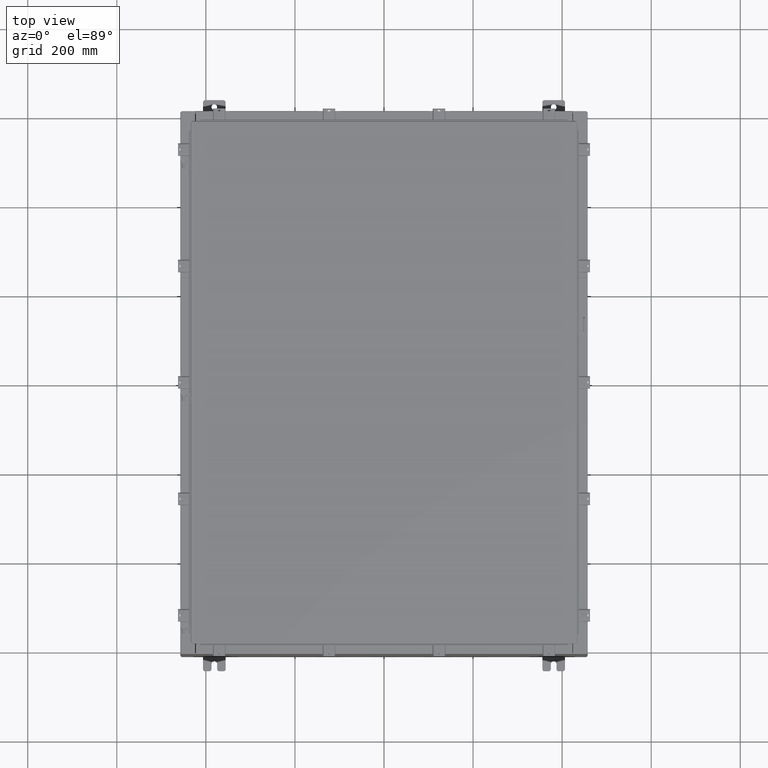
[diagram: clean part render]
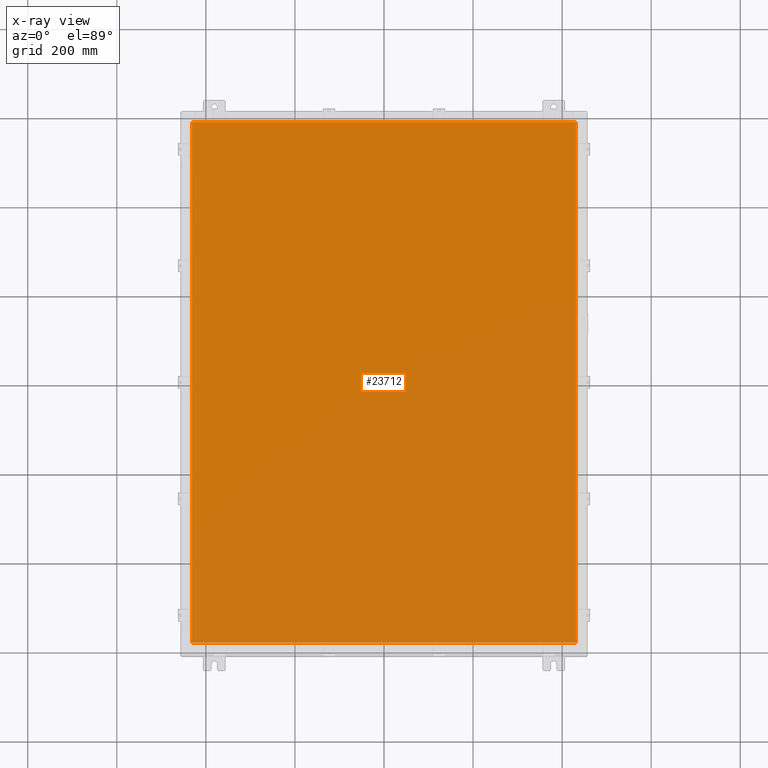
[diagram: x-ray — body ghosted, one internal face saturated and labeled with its STEP entity id]
A machine part, top view, then the same camera in x-ray: the body is ghosted and one INTERNAL B-rep face — a face not visible from any outside direction — is saturated and labeled: STEP entity #23712.
In plain terms, the highlighted planar face has unit normal (0, 0, -1).
Its self-contained STEP definition (entity closure, byte-faithful):
#779 = FACE_OUTER_BOUND ( 'NONE', #23626, .T. ) ;
#1055 = VERTEX_POINT ( 'NONE', #11537 ) ;
#1140 = VERTEX_POINT ( 'NONE', #10193 ) ;
#1449 = ORIENTED_EDGE ( 'NONE', *, *, #5586, .F. ) ;
#1733 = AXIS2_PLACEMENT_3D ( 'NONE', #4291, #17014, #4378 ) ;
#2490 = ORIENTED_EDGE ( 'NONE', *, *, #24665, .F. ) ;
#3013 = VERTEX_POINT ( 'NONE', #8058 ) ;
#3298 = DIRECTION ( 'NONE',  ( -1.000000000000000000, -0.0000000000000000000, -0.0000000000000000000 ) ) ;
#3897 = DIRECTION ( 'NONE',  ( 0.0000000000000000000, -1.000000000000000000, 0.0000000000000000000 ) ) ;
#4291 = CARTESIAN_POINT ( 'NONE',  ( 0.0000000000000000000, 0.0000000000000000000, -0.07470000000000015500 ) ) ;
#4378 = DIRECTION ( 'NONE',  ( -1.000000000000000000, 0.0000000000000000000, -0.0000000000000000000 ) ) ;
#5074 = VECTOR ( 'NONE', #21893, 39.37007874015748100 ) ;
#5586 = EDGE_CURVE ( 'NONE', #12292, #1055, #25271, .T. ) ;
#7373 = VECTOR ( 'NONE', #13850, 39.37007874015748100 ) ;
#8058 = CARTESIAN_POINT ( 'NONE',  ( 16.99030000000000100, -23.00630000000000000, -0.07470000000000015500 ) ) ;
#8979 = VECTOR ( 'NONE', #3897, 39.37007874015748100 ) ;
#10193 = CARTESIAN_POINT ( 'NONE',  ( -16.99029999999999800, -23.00629999999999600, -0.07470000000000015500 ) ) ;
#10698 = LINE ( 'NONE', #26007, #5074 ) ;
#11537 = CARTESIAN_POINT ( 'NONE',  ( -16.99029999999999800, 23.00629999999999600, -0.07470000000000015500 ) ) ;
#12292 = VERTEX_POINT ( 'NONE', #24200 ) ;
#13850 = DIRECTION ( 'NONE',  ( 1.000000000000000000, -0.0000000000000000000, -0.0000000000000000000 ) ) ;
#14327 = LINE ( 'NONE', #20155, #7373 ) ;
#14879 = PLANE ( 'NONE',  #1733 ) ;
#15931 = CARTESIAN_POINT ( 'NONE',  ( 16.99029999999999800, 23.00630000000000000, -0.07469999999999797600 ) ) ;
#16517 = CARTESIAN_POINT ( 'NONE',  ( -16.99029999999999800, 23.00629999999999600, -0.07470000000000015500 ) ) ;
#17014 = DIRECTION ( 'NONE',  ( 0.0000000000000000000, 0.0000000000000000000, -1.000000000000000000 ) ) ;
#17583 = EDGE_CURVE ( 'NONE', #1140, #3013, #14327, .T. ) ;
#18893 = ORIENTED_EDGE ( 'NONE', *, *, #17583, .F. ) ;
#20155 = CARTESIAN_POINT ( 'NONE',  ( -16.99029999999999800, -23.00630000000000000, -0.07469999999999797600 ) ) ;
#20351 = VECTOR ( 'NONE', #3298, 39.37007874015748100 ) ;
#21317 = ORIENTED_EDGE ( 'NONE', *, *, #25430, .F. ) ;
#21893 = DIRECTION ( 'NONE',  ( 0.0000000000000000000, 1.000000000000000000, 0.0000000000000000000 ) ) ;
#23626 = EDGE_LOOP ( 'NONE', ( #2490, #18893, #21317, #1449 ) ) ;
#23712 = ADVANCED_FACE ( 'NONE', ( #779 ), #14879, .T. ) ;
#24200 = CARTESIAN_POINT ( 'NONE',  ( 16.99030000000000100, 23.00629999999999600, -0.07470000000000015500 ) ) ;
#24665 = EDGE_CURVE ( 'NONE', #3013, #12292, #10698, .T. ) ;
#25271 = LINE ( 'NONE', #15931, #20351 ) ;
#25430 = EDGE_CURVE ( 'NONE', #1055, #1140, #25784, .T. ) ;
#25784 = LINE ( 'NONE', #16517, #8979 ) ;
#26007 = CARTESIAN_POINT ( 'NONE',  ( 16.99030000000000100, -23.00629999999999600, -0.07470000000000015500 ) ) ;